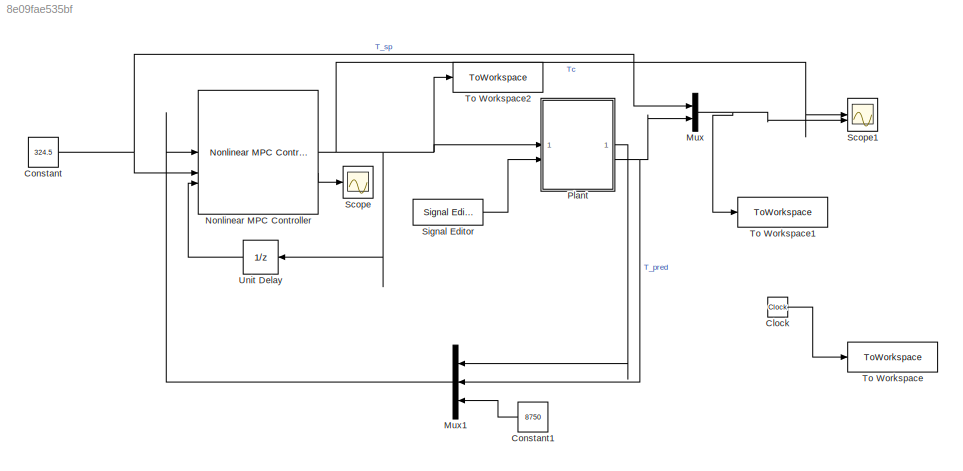
MODEL slx_8e09fae535bf
KIND model
CONFIG AbsTol = auto
CONFIG EnableMultiTasking = off
CONFIG FixedStep = auto
CONFIG MaxStep = auto
CONFIG MinStep = auto
CONFIG RelTol = 1e-3
CONFIG SampleTimeConstraint = Unconstrained
CONFIG SolverName = VariableStepAuto
CONFIG StartTime = 0.0
CONFIG StopTime = 30
BLOCK [Clock] Clock
BLOCK [Constant] Constant
  Value = 324.5
BLOCK [Constant] Constant1
  Value = 8750
BLOCK [Mux] Mux
  DisplayOption = bar
  Inputs = 2
BLOCK [Mux] Mux1
  DisplayOption = bar
  Inputs = 3
BLOCK [Reference] Nonlinear MPC Controller  REF=mpclib/Nonlinear MPC Controller  (lib defined in mdl_ae329e0e0455)
  SourceBlock = mpclib/Nonlinear MPC Controller
  SourceType = NonlinearMPC
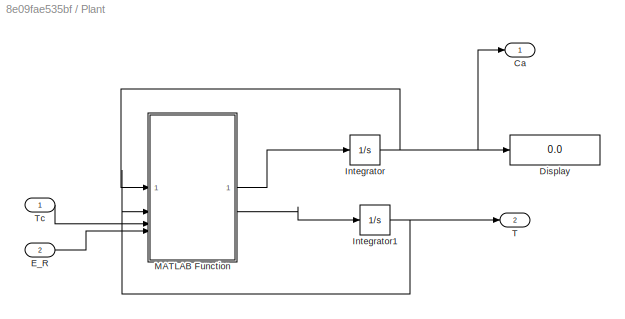
BLOCK [SubSystem] Plant
BLOCK [Outport] Plant/Ca
BLOCK [Display] Plant/Display
  Decimation = 1
BLOCK [Inport] Plant/E_R
  Port = 2
BLOCK [Integrator] Plant/Integrator
BLOCK [Integrator] Plant/Integrator1
  InitialCondition = 300
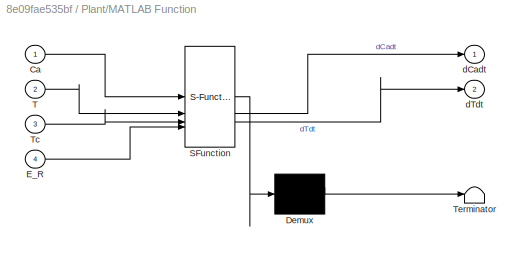
BLOCK [SubSystem] Plant/MATLAB Function
  ErrorFcn = Stateflow.Translate.translate
  PermitHierarchicalResolution = ExplicitOnly
  SFBlockType = MATLAB Function
  TreatAsAtomicUnit = on
BLOCK [Demux] Plant/MATLAB Function/ Demux 
  Outputs = 1
BLOCK [S-Function] Plant/MATLAB Function/ SFunction 
  EnableBusSupport = on
  FunctionName = sf_sfun
  PortCounts = [4 3]
  SFcnIsStateOwnerBlock = off
  SFunctionDeploymentMode = off
  Tag = Stateflow S-Function 2
BLOCK [Terminator] Plant/MATLAB Function/ Terminator 
BLOCK [Inport] Plant/MATLAB Function/Ca
BLOCK [Inport] Plant/MATLAB Function/E_R
  Port = 4
BLOCK [Inport] Plant/MATLAB Function/T
  Port = 2
BLOCK [Inport] Plant/MATLAB Function/Tc
  Port = 3
BLOCK [Outport] Plant/MATLAB Function/dCadt
BLOCK [Outport] Plant/MATLAB Function/dTdt
  Port = 2
BLOCK [Outport] Plant/T
  Port = 2
BLOCK [Inport] Plant/Tc
BLOCK [Scope] Scope
  Floating = off
  NumInputPorts = 1
  ScopeSpecificationString = Simulink.scopes.TimeScopeBlockCfg('CurrentConfiguration', extmgr.ConfigurationSet(extmgr.Configuration('Core','General UI',true),extmgr.Configuration('Core','Source UI',true),extmgr.Configuration('Sources','WiredSimulink',true),extmgr.Configuration('Visuals','Time Domain',true,'SerializedDisplays',{struct('MinYLimReal','0.9','MaxYLimReal','1.1','YLabelReal','','MinYLimMag','0.9','MaxYLimMag','1.1'...<+1347ch>
BLOCK [Scope] Scope1
  Floating = off
  NumInputPorts = 2
  ScopeSpecificationString = Simulink.scopes.TimeScopeBlockCfg('CurrentConfiguration', extmgr.ConfigurationSet(extmgr.Configuration('Core','General UI',true,'FigureColor',[1 1 1]),extmgr.Configuration('Core','Source UI',true),extmgr.Configuration('Sources','WiredSimulink',true,'DataLoggingVariableName','ScopeData1'),extmgr.Configuration('Visuals','Time Domain',true,'SerializedDisplays',{struct('MinYLimReal','291.15173','MaxYL...<+2364ch>
BLOCK [Reference] Signal Editor  REF=SignalEditorBlockLib/Signal Editor
  LibrarySourceBlock = simulink/Sources/Signal Editor
  SourceBlock = SignalEditorBlockLib/Signal Editor
  SourceType = SignalEditor
  UserDataPersistent = on
BLOCK [ToWorkspace] To Workspace
  FixptAsFi = on
  MaxDataPoints = inf
  SampleTime = Ts
  SaveFormat = Timeseries
  VariableName = t_save
BLOCK [ToWorkspace] To Workspace1
  FixptAsFi = on
  MaxDataPoints = inf
  SampleTime = Ts
  SaveFormat = Timeseries
  VariableName = T_nom
BLOCK [ToWorkspace] To Workspace2
  FixptAsFi = on
  MaxDataPoints = inf
  SampleTime = Ts
  SaveFormat = Timeseries
  VariableName = Tc_nom
BLOCK [UnitDelay] Unit Delay
  HasFrameUpgradeWarning = on
  InitialCondition = u0
  SampleTime = Ts
LINE Clock:1 -> To Workspace:1
LINE Constant1:1 -> Mux1:3
NET Constant:1 -> Mux:1, Nonlinear MPC Controller:2
LINE Mux1:1 -> Nonlinear MPC Controller:1
NET Mux:1 -> Scope1:2, To Workspace1:1
NET Nonlinear MPC Controller:1 -> Plant:1, Scope1:1, To Workspace2:1, Unit Delay:1
LINE Nonlinear MPC Controller:2 -> Scope:1
LINE Plant/E_R:1 -> Plant/MATLAB Function:4
NET Plant/Integrator1:1 -> Plant/MATLAB Function:2, Plant/T:1
NET Plant/Integrator:1 -> Plant/Ca:1, Plant/Display:1, Plant/MATLAB Function:1
LINE Plant/MATLAB Function:1 -> Plant/Integrator:1
LINE Plant/MATLAB Function:2 -> Plant/Integrator1:1
LINE Plant/Tc:1 -> Plant/MATLAB Function:3
LINE Plant:1 -> Mux1:1
NET Plant:2 -> Mux1:2, Mux:2
LINE Signal Editor:1 -> Plant:2
LINE Unit Delay:1 -> Nonlinear MPC Controller:3
note: NET lines group one-source signal fan-out (src -> all destinations, sorted); 1:1 wires keep LINE
CHART Plant/MATLAB Function states=1 transitions=1
  STATE_LABEL 'eML_blk_kernel()'
  STATE_LABEL 'SCRIPT:\nfunction [dCadt,dTdt] = fcn(Ca,T,Tc,E_R)\n\nvalues = {100,5e4,350,100,1000,0.239,7.2e10,5e4,1};\n[F,delta_H,Tf,V,rho,Cp,k0,U_A,Caf] = values{:};\n\n% Rate constant (Arrhenius equation)\n        k = k0 * exp(-E_R / T);\n        \n        % Mass balance for Ca\n        dCadt = F/V * (Caf - Ca) - k * Ca;\n        \n        % Energy balance for T\n        dTdt = F/V * (Tf - T) + (delta_H / (rho * Cp)) * k...<+49ch>'
CHART  states=0 transitions=0
